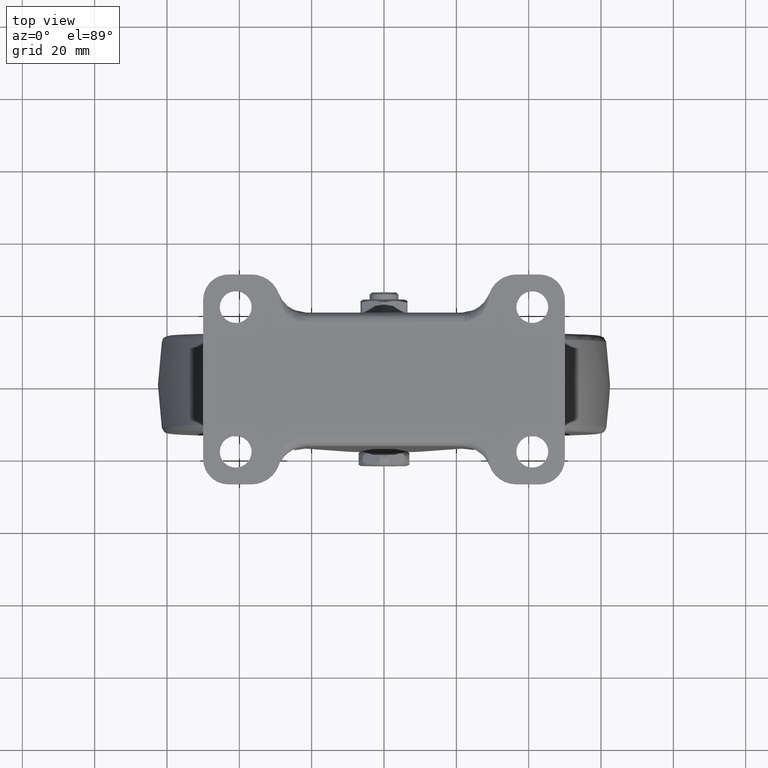
[diagram: clean part render]
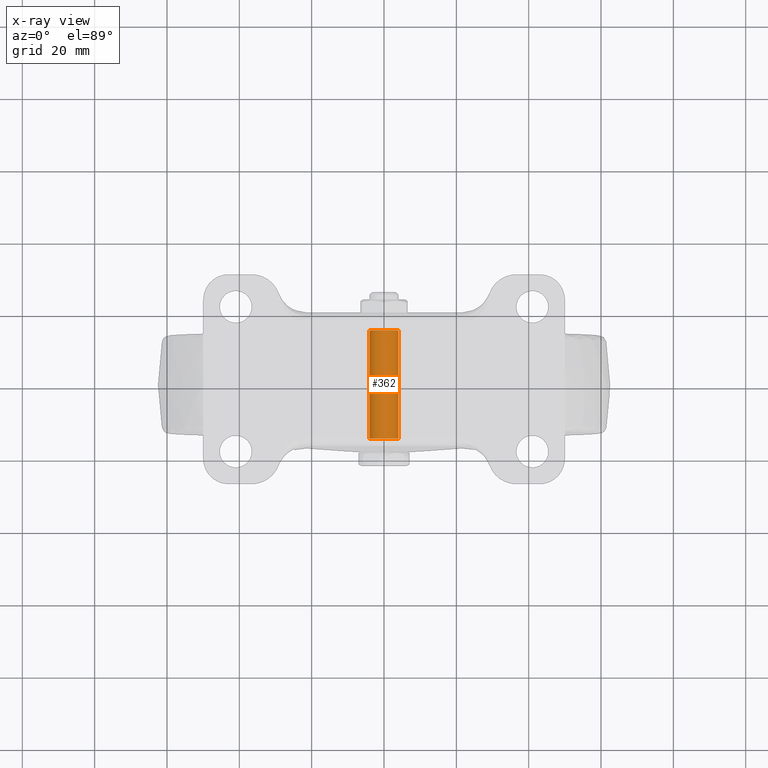
[diagram: x-ray — body ghosted, one internal face saturated and labeled with its STEP entity id]
A machine part, top view, then the same camera in x-ray: the body is ghosted and one INTERNAL B-rep face — a face not visible from any outside direction — is saturated and labeled: STEP entity #362.
In plain terms, the highlighted face is a freeform B-spline surface patch.
Its self-contained STEP definition (entity closure, byte-faithful):
#260=CARTESIAN_POINT('',(3.972038105454666,15.750000000000005,-0.472136938627033));
#261=CARTESIAN_POINT('',(3.985550461794422,15.750000000000007,-0.358458914551909));
#262=CARTESIAN_POINT('',(3.992539193687467,15.750000000000000,-0.244194158139427));
#263=CARTESIAN_POINT('',(4.236733351826894,15.750000000000009,3.748345035548040));
#264=CARTESIAN_POINT('',(0.244194158139428,15.750000000000000,3.992539193687468));
#265=CARTESIAN_POINT('',(-3.748345035548039,15.750000000000009,4.236733351826896));
#266=CARTESIAN_POINT('',(-3.992539193687467,15.750000000000000,0.244194158139429));
#267=CARTESIAN_POINT('',(3.972038105454666,-15.768750000000006,-0.472136938627033));
#268=CARTESIAN_POINT('',(3.985550461794422,-15.768750000000006,-0.358458914551909));
#269=CARTESIAN_POINT('',(3.992539193687467,-15.768750000000001,-0.244194158139427));
#270=CARTESIAN_POINT('',(4.236733351826894,-15.768749999999997,3.748345035548040));
#271=CARTESIAN_POINT('',(0.244194158139428,-15.768750000000001,3.992539193687468));
#272=CARTESIAN_POINT('',(-3.748345035548039,-15.768749999999997,4.236733351826896));
#273=CARTESIAN_POINT('',(-3.992539193687467,-15.768750000000001,0.244194158139429));
#281=(BOUNDED_SURFACE()B_SPLINE_SURFACE(2,1,((#260,#267),(#261,#268),(#262,#269),(#263,#270),(#264,#271),(#265,#272),(#266,#273)),.UNSPECIFIED.,.F.,.F.,.U.)B_SPLINE_SURFACE_WITH_KNOTS((3,2,2,3),(2,2),(0.0,0.265096679918781,6.892513677888300,13.519930675857820),(0.0,31.518750000000011),.UNSPECIFIED.)GEOMETRIC_REPRESENTATION_ITEM()RATIONAL_B_SPLINE_SURFACE(((0.977505800795127,0.977505800795127),(0.988284271247462,0.988284271247462),(1.0,1.0),(0.707106781186548,0.707106781186548),(1.0,1.0),(0.707106781186548,0.707106781186548),(1.0,1.0)))REPRESENTATION_ITEM('')SURFACE());
#282=CARTESIAN_POINT('',(3.972038105411629,15.0,-0.472136938989090));
#283=VERTEX_POINT('',#282);
#284=CARTESIAN_POINT('',(0.0,15.0,4.000000000000001));
#285=VERTEX_POINT('',#284);
#286=CARTESIAN_POINT('',(3.972038105411629,15.0,-0.472136938989090));
#287=CARTESIAN_POINT('',(4.0,14.999999999999998,-0.236896478973524));
#288=CARTESIAN_POINT('',(4.0,15.0,1.211545E-015));
#289=CARTESIAN_POINT('',(4.000000000000000,14.999999999999995,4.000000000000001));
#290=CARTESIAN_POINT('',(0.0,15.0,4.000000000000001));
#298=(BOUNDED_CURVE()B_SPLINE_CURVE(2,(#286,#287,#288,#289,#290),.UNSPECIFIED.,.F.,.U.)B_SPLINE_CURVE_WITH_KNOTS((3,2,3),(0.229562473484834,0.250000000000000,0.500000000000000),.UNSPECIFIED.)CURVE()GEOMETRIC_REPRESENTATION_ITEM()RATIONAL_B_SPLINE_CURVE((0.956026754127497,0.976055948297551,1.0,0.707106781186548,1.0))REPRESENTATION_ITEM(''));
#299=EDGE_CURVE('',#283,#285,#298,.T.);
#300=ORIENTED_EDGE('',*,*,#299,.F.);
#301=CARTESIAN_POINT('',(3.972038105411629,-15.0,-0.472136938989090));
#302=VERTEX_POINT('',#301);
#303=CARTESIAN_POINT('',(3.972038105411629,15.0,-0.472136938989090));
#304=CARTESIAN_POINT('',(3.972038105411629,-15.0,-0.472136938989090));
#305=QUASI_UNIFORM_CURVE('',1,(#303,#304),.UNSPECIFIED.,.F.,.U.);
#306=EDGE_CURVE('',#283,#302,#305,.T.);
#307=ORIENTED_EDGE('',*,*,#306,.T.);
#308=CARTESIAN_POINT('',(0.0,-15.0,4.000000000000001));
#309=VERTEX_POINT('',#308);
#310=CARTESIAN_POINT('',(3.972038105411629,-15.0,-0.472136938989090));
#311=CARTESIAN_POINT('',(4.0,-14.999999999999998,-0.236896478973524));
#312=CARTESIAN_POINT('',(4.0,-15.0,1.211545E-015));
#313=CARTESIAN_POINT('',(4.000000000000000,-14.999999999999995,4.000000000000001));
#314=CARTESIAN_POINT('',(0.0,-15.0,4.000000000000001));
#322=(BOUNDED_CURVE()B_SPLINE_CURVE(2,(#310,#311,#312,#313,#314),.UNSPECIFIED.,.F.,.U.)B_SPLINE_CURVE_WITH_KNOTS((3,2,3),(0.229562473484834,0.250000000000000,0.500000000000000),.UNSPECIFIED.)CURVE()GEOMETRIC_REPRESENTATION_ITEM()RATIONAL_B_SPLINE_CURVE((0.956026754127497,0.976055948297551,1.0,0.707106781186548,1.0))REPRESENTATION_ITEM(''));
#323=EDGE_CURVE('',#302,#309,#322,.T.);
#324=ORIENTED_EDGE('',*,*,#323,.T.);
#325=CARTESIAN_POINT('',(-3.992539193666988,-15.0,0.244194158474263));
#326=VERTEX_POINT('',#325);
#327=CARTESIAN_POINT('',(0.0,-15.0,4.000000000000001));
#328=CARTESIAN_POINT('',(-3.762824266990484,-14.999999999999998,4.000000000000001));
#329=CARTESIAN_POINT('',(-3.992539193666989,-15.000000000000002,0.244194158474263));
#337=(BOUNDED_CURVE()B_SPLINE_CURVE(2,(#327,#328,#329),.UNSPECIFIED.,.F.,.U.)B_SPLINE_CURVE_WITH_KNOTS((3,3),(0.500000000000000,0.739332962213028),.UNSPECIFIED.)CURVE()GEOMETRIC_REPRESENTATION_ITEM()RATIONAL_B_SPLINE_CURVE((1.0,0.719603993317071,0.976072041611177))REPRESENTATION_ITEM(''));
#338=EDGE_CURVE('',#309,#326,#337,.T.);
#339=ORIENTED_EDGE('',*,*,#338,.T.);
#340=CARTESIAN_POINT('',(-3.992539193666988,15.0,0.244194158474263));
#341=VERTEX_POINT('',#340);
#342=CARTESIAN_POINT('',(-3.992539193666988,15.0,0.244194158474263));
#343=CARTESIAN_POINT('',(-3.992539193666988,-15.0,0.244194158474263));
#344=QUASI_UNIFORM_CURVE('',1,(#342,#343),.UNSPECIFIED.,.F.,.U.);
#345=EDGE_CURVE('',#341,#326,#344,.T.);
#346=ORIENTED_EDGE('',*,*,#345,.F.);
#347=CARTESIAN_POINT('',(0.0,15.0,4.000000000000001));
#348=CARTESIAN_POINT('',(-3.762824266990484,14.999999999999998,4.000000000000001));
#349=CARTESIAN_POINT('',(-3.992539193666989,15.000000000000002,0.244194158474263));
#357=(BOUNDED_CURVE()B_SPLINE_CURVE(2,(#347,#348,#349),.UNSPECIFIED.,.F.,.U.)B_SPLINE_CURVE_WITH_KNOTS((3,3),(0.500000000000000,0.739332962213028),.UNSPECIFIED.)CURVE()GEOMETRIC_REPRESENTATION_ITEM()RATIONAL_B_SPLINE_CURVE((1.0,0.719603993317071,0.976072041611177))REPRESENTATION_ITEM(''));
#358=EDGE_CURVE('',#285,#341,#357,.T.);
#359=ORIENTED_EDGE('',*,*,#358,.F.);
#360=EDGE_LOOP('',(#300,#307,#324,#339,#346,#359));
#361=FACE_OUTER_BOUND('',#360,.T.);
#362=ADVANCED_FACE('',(#361),#281,.F.);